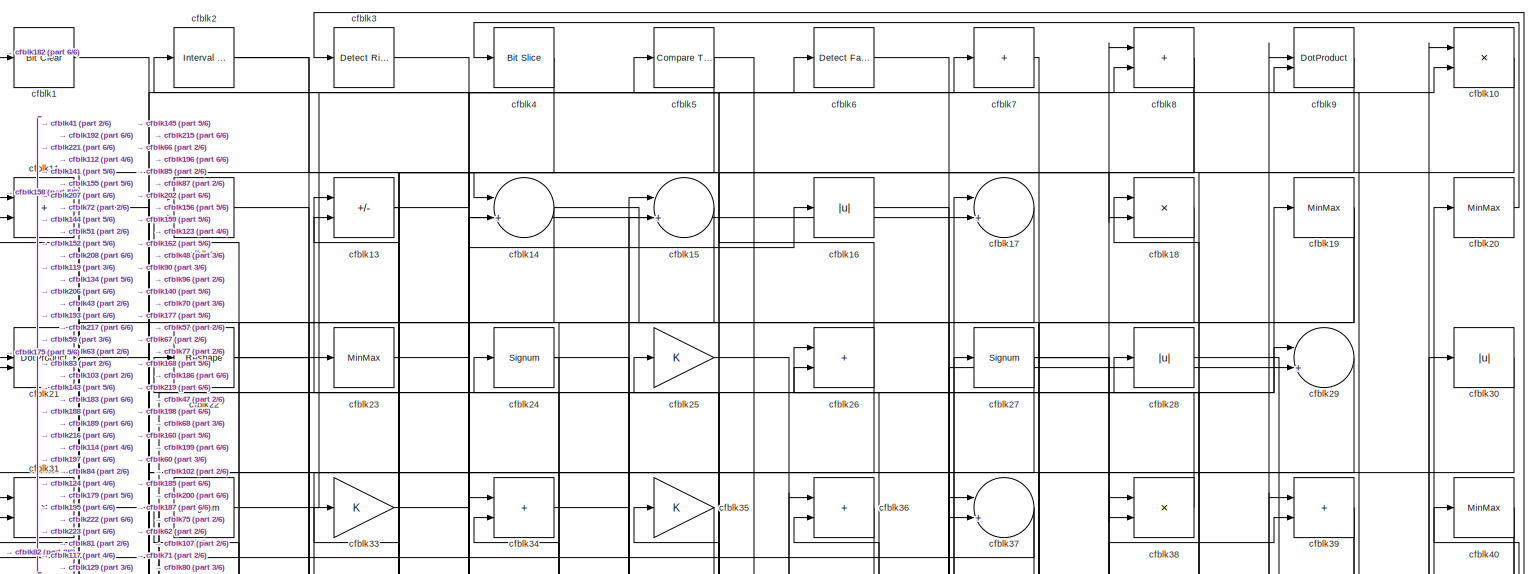
[diagram: root canvas - part 1/6, full width, top band]
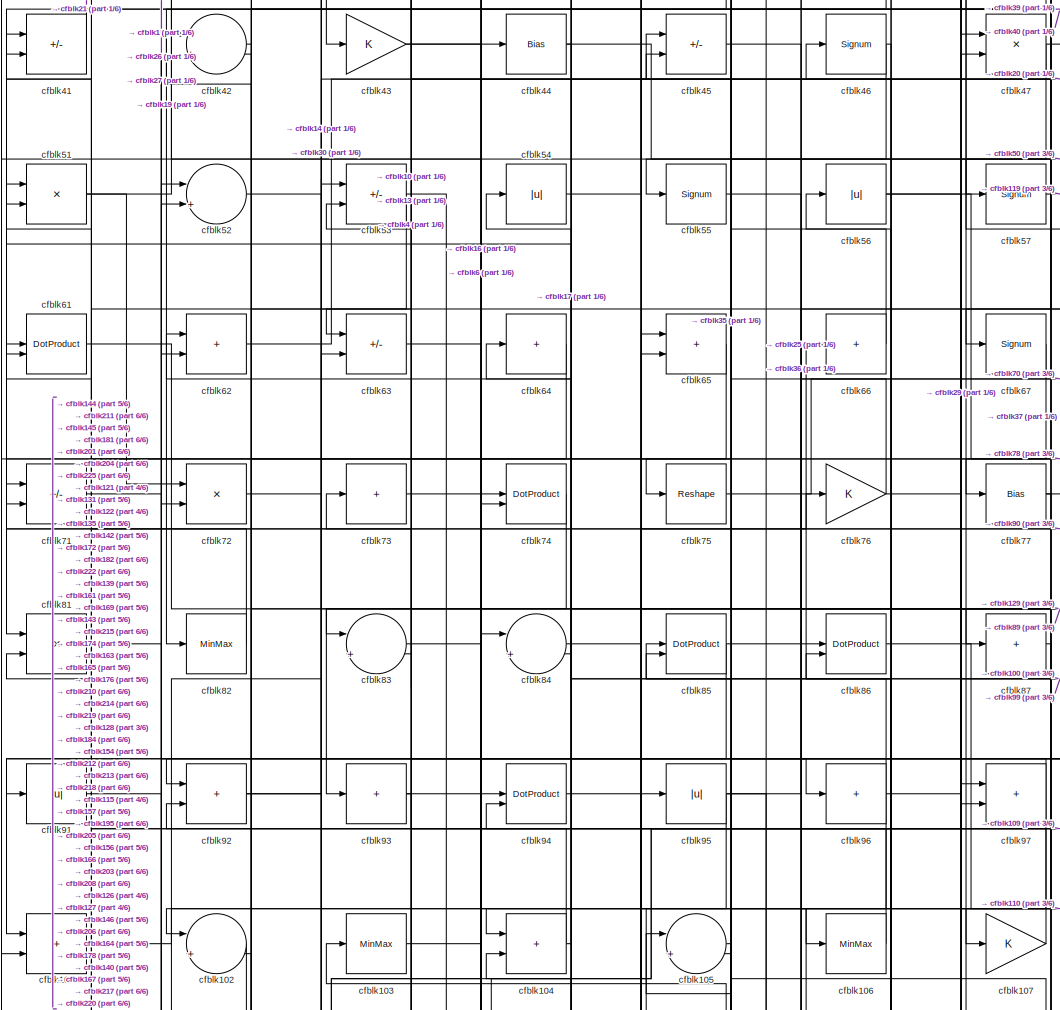
[diagram: root canvas - part 2/6, top center region]
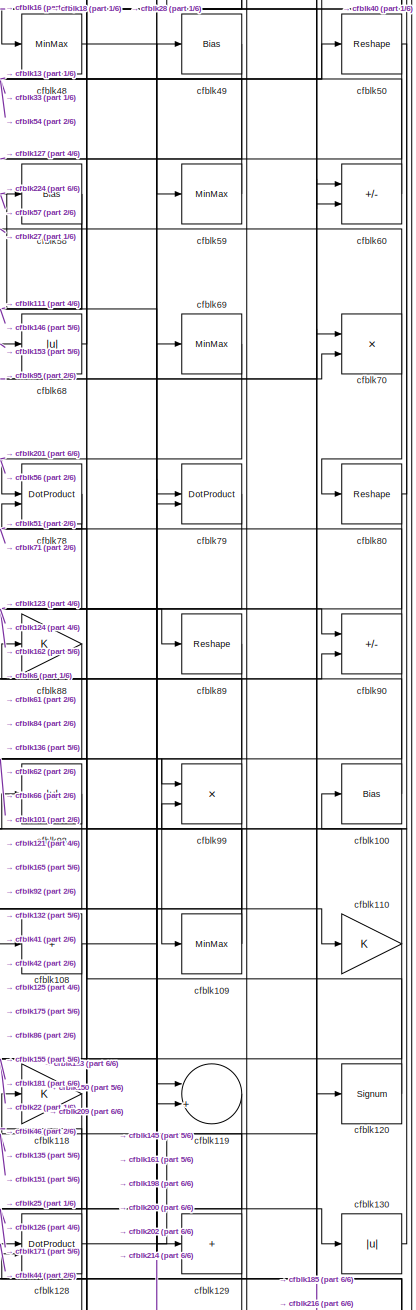
[diagram: root canvas - part 3/6, middle right region]
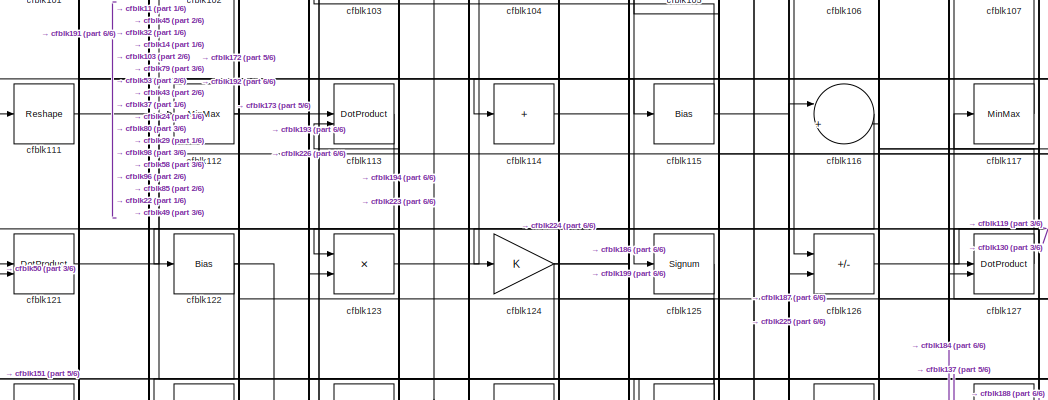
[diagram: root canvas - part 4/6, central region]
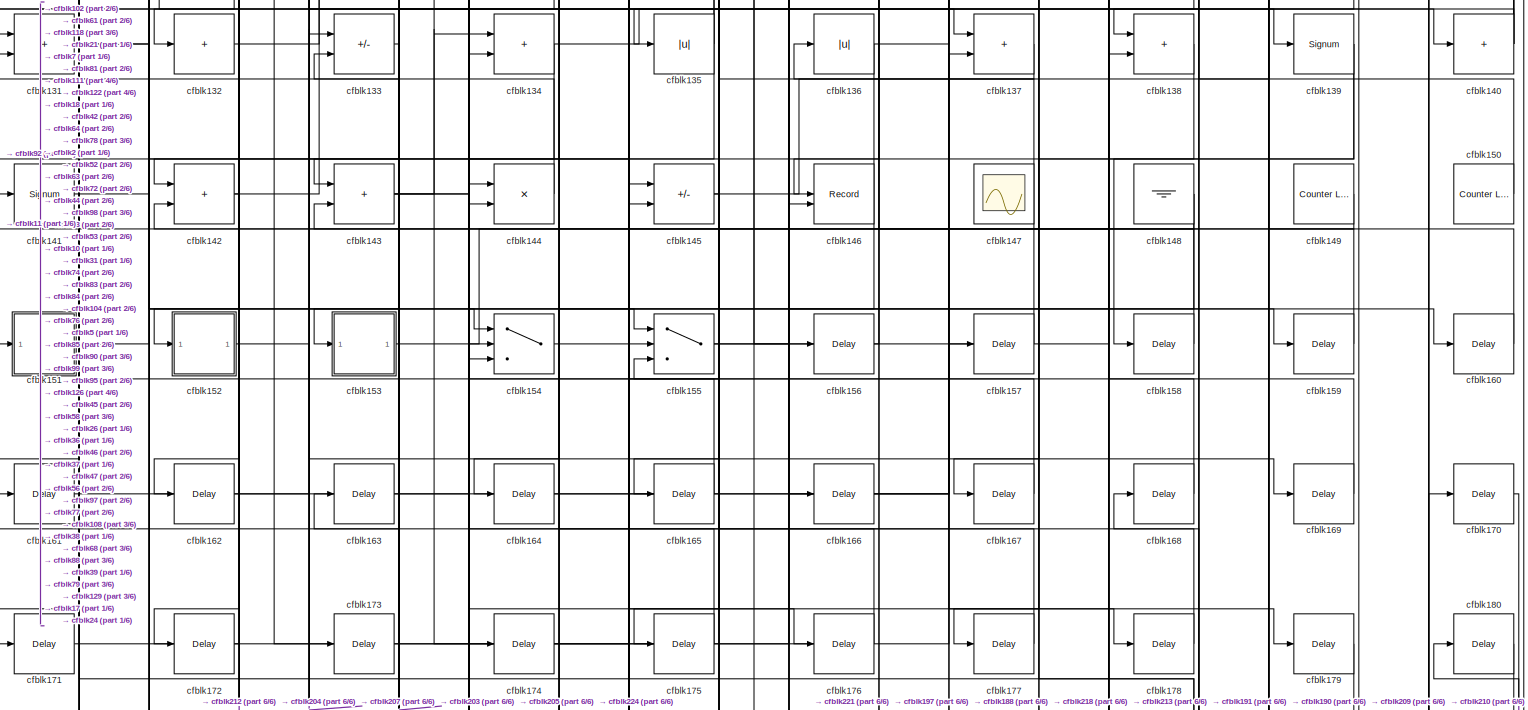
[diagram: root canvas - part 5/6, full width, bottom band]
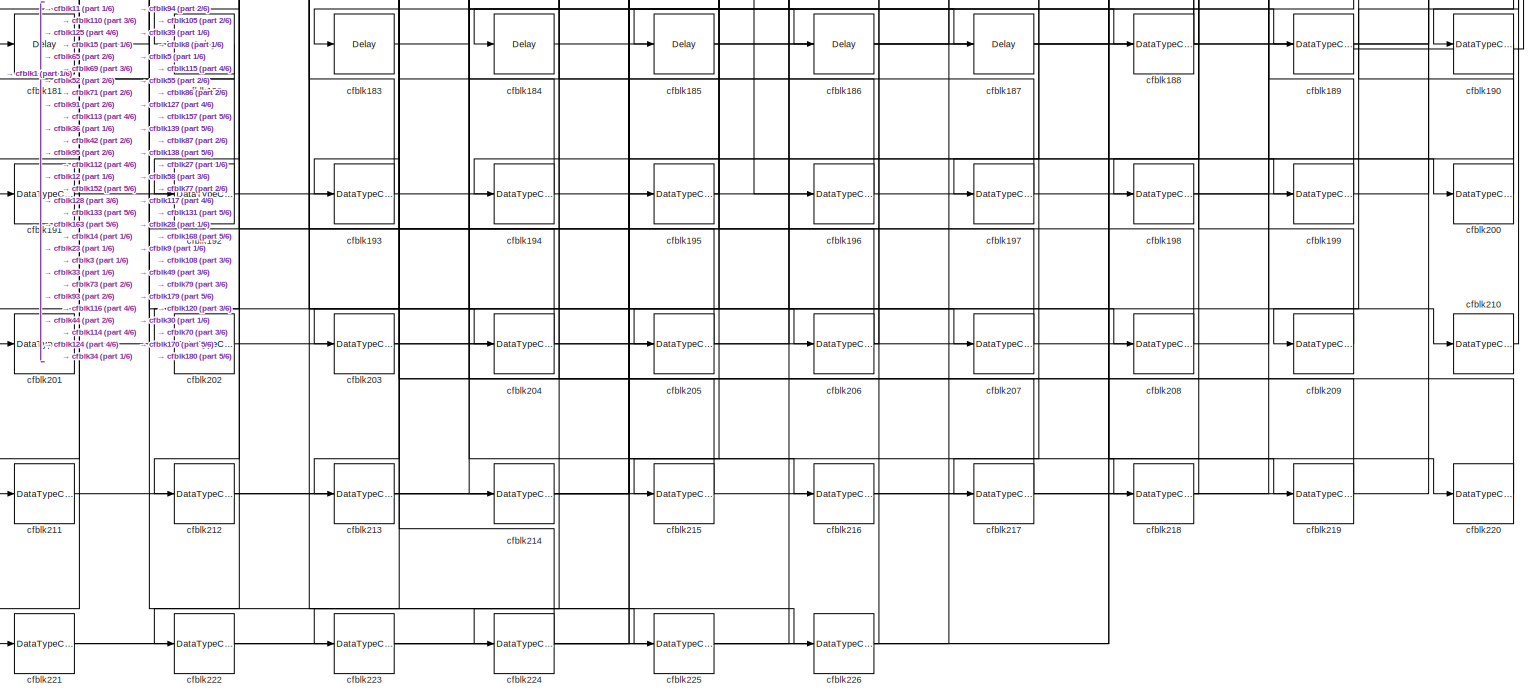
[diagram: root canvas - part 6/6, full width, bottom band]
MODEL slx_f7cb65cc12c7
KIND model
CONFIG AbsTol = auto
CONFIG EnableMultiTasking = off
CONFIG FixedStep = auto
CONFIG MaxStep = auto
CONFIG MinStep = auto
CONFIG RelTol = 1e-3
CONFIG SampleTimeConstraint = Unconstrained
CONFIG SolverName = VariableStepAuto
CONFIG StartTime = 0.0
CONFIG StopTime = 10.0
BLOCK [Reference] cfblk1  REF=simulink/Logic and Bit
Operations/Bit Clear
  LibrarySourceBlock = hdlsllib/Logic and Bit\nOperations/Bit Clear
  SourceBlock = simulink/Logic and Bit\nOperations/Bit Clear
  SourceType = Bit Clear
BLOCK [Product] cfblk10
  Inputs = */
  RndMeth = Zero
  SaturateOnIntegerOverflow = on
BLOCK [Bias] cfblk100
  Bias = 0.0
  SaturateOnIntegerOverflow = off
BLOCK [Sum] cfblk101
  IconShape = rectangular
BLOCK [Sum] cfblk102
  Inputs = |++
BLOCK [MinMax] cfblk103
BLOCK [Sum] cfblk104
  IconShape = rectangular
BLOCK [Sum] cfblk105
  Inputs = |++
BLOCK [MinMax] cfblk106
BLOCK [Gain] cfblk107
BLOCK [Sum] cfblk108
  IconShape = rectangular
  Inputs = +
BLOCK [MinMax] cfblk109
BLOCK [Sum] cfblk11
  IconShape = rectangular
BLOCK [Gain] cfblk110
BLOCK [Reshape] cfblk111
BLOCK [MinMax] cfblk112
BLOCK [DotProduct] cfblk113
  OutDataTypeStr = Inherit: Inherit via internal rule
BLOCK [Sum] cfblk114
  IconShape = rectangular
  Inputs = +
BLOCK [Bias] cfblk115
  Bias = 0.0
  SaturateOnIntegerOverflow = off
BLOCK [Sum] cfblk116
  Inputs = |++
BLOCK [MinMax] cfblk117
BLOCK [Gain] cfblk118
BLOCK [Sum] cfblk119
  Inputs = |++
BLOCK [Sum] cfblk12
  IconShape = rectangular
BLOCK [Signum] cfblk120
BLOCK [DotProduct] cfblk121
  OutDataTypeStr = Inherit: Inherit via internal rule
BLOCK [Bias] cfblk122
  Bias = 0.0
  SaturateOnIntegerOverflow = off
BLOCK [Product] cfblk123
  Inputs = */
  RndMeth = Zero
  SaturateOnIntegerOverflow = on
BLOCK [Gain] cfblk124
BLOCK [Signum] cfblk125
BLOCK [Sum] cfblk126
  IconShape = rectangular
  Inputs = +-
BLOCK [DotProduct] cfblk127
  OutDataTypeStr = Inherit: Inherit via internal rule
BLOCK [DotProduct] cfblk128
  OutDataTypeStr = Inherit: Inherit via internal rule
BLOCK [Sum] cfblk129
  IconShape = rectangular
  Inputs = +
BLOCK [Sum] cfblk13
  IconShape = rectangular
  Inputs = +-
BLOCK [Abs] cfblk130
  SaturateOnIntegerOverflow = off
BLOCK [Sum] cfblk131
  IconShape = rectangular
BLOCK [Sum] cfblk132
  IconShape = rectangular
  Inputs = +
BLOCK [Sum] cfblk133
  IconShape = rectangular
  Inputs = +-
BLOCK [Sum] cfblk134
  IconShape = rectangular
BLOCK [Abs] cfblk135
  SaturateOnIntegerOverflow = off
BLOCK [Abs] cfblk136
  SaturateOnIntegerOverflow = off
BLOCK [Sum] cfblk137
  IconShape = rectangular
BLOCK [Sum] cfblk138
  IconShape = rectangular
BLOCK [Signum] cfblk139
BLOCK [Sum] cfblk14
  Inputs = |++
BLOCK [Sum] cfblk140
  IconShape = rectangular
  Inputs = +
BLOCK [Signum] cfblk141
BLOCK [Sum] cfblk142
  IconShape = rectangular
BLOCK [Sum] cfblk143
  IconShape = rectangular
BLOCK [Product] cfblk144
  Inputs = */
  RndMeth = Zero
  SaturateOnIntegerOverflow = on
BLOCK [Sum] cfblk145
  IconShape = rectangular
  Inputs = +-
BLOCK [Record] cfblk146
  CompatibilityTag = XY
  FileSettingsInternal = {"entries":[{"content":{"excelSettings":{"content":{},"type":"Streamout.ExcelSettings"}},"type":"Streamout.FileSettingStorage","uuid":""}],"packageUris":["http:\/\/schema.mathworks.com\/mf0\/streamout_blocks\/R2020a"],"version":"1.0"}
  Layout = [1 1]
  SignalsInternal = {"entries":[{"content":{"signals":[{"content":{"blockPath":[],"dimensions":[1],"domain":"","lineColor":"#a2142f","plots":[1],"port":1,"signalID":2237,"signalName":"XY Graph:1"},"type":"RecordBlkView.Signal","uuid":""},{"content":{"blockPath":[],"dimensions":[1],"domain":"","lineColor":"#139fff","plots":[1],"port":2,"signalID":2240,"signalName":"XY Graph:2"},"type":"RecordBlkView.Signal","uuid":""}...<+146ch>
  VisualizationBindings = {"xyplotplugin":{"info":[{"series":[{"bindingParametersList":[{"parameter":"X-Axis","signalID":2237,"signalName":"XY Graph:1"},{"parameter":"Y-Axis","signalID":2240,"signalName":"XY Graph:2"}],"seriesID":42560}],"subplotID":1}]}}
  st = -1
BLOCK [Scope] cfblk147
  Floating = on
  NumInputPorts = 1
  ScopeSpecificationString = Simulink.scopes.TimeScopeBlockCfg('CurrentConfiguration', extmgr.ConfigurationSet(extmgr.Configuration('Core','General UI',true,'FigureColor',[0.156862745098039 0.156862745098039 0.156862745098039]),extmgr.Configuration('Core','Source UI',true),extmgr.Configuration('Sources','WiredSimulink',true,'DataLoggingVariableName','ScopeData1','DataLoggingSaveFormat','StructureWithTime','DataLoggingLimitDat...<+2713ch>
BLOCK [Ground] cfblk148
BLOCK [Reference] cfblk149  REF=hdlsllib/Sources/Counter
Limited
  SourceBlock = hdlsllib/Sources/Counter\nLimited
  SourceType = Counter Limited
BLOCK [Sum] cfblk15
  Inputs = |++
BLOCK [Reference] cfblk150  REF=hdlsllib/Sources/Counter
Limited
  SourceBlock = hdlsllib/Sources/Counter\nLimited
  SourceType = Counter Limited
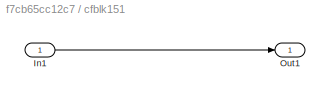
BLOCK [SubSystem] cfblk151
  LibrarySourceBlock = hdlsllib/Ports &\nSubsystems/Subsystem
BLOCK [Inport] cfblk151/In1
BLOCK [Outport] cfblk151/Out1
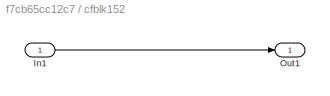
BLOCK [SubSystem] cfblk152
  LibrarySourceBlock = hdlsllib/Ports &\nSubsystems/Subsystem
BLOCK [Inport] cfblk152/In1
BLOCK [Outport] cfblk152/Out1
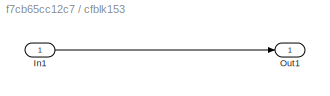
BLOCK [SubSystem] cfblk153
  LibrarySourceBlock = hdlsllib/Ports &\nSubsystems/Subsystem
BLOCK [Inport] cfblk153/In1
BLOCK [Outport] cfblk153/Out1
BLOCK [Switch] cfblk154
  InputSameDT = off
  SaturateOnIntegerOverflow = off
BLOCK [Switch] cfblk155
  InputSameDT = off
  SaturateOnIntegerOverflow = off
BLOCK [Delay] cfblk156
  InputPortMap = u0
  SampleTime = 1
BLOCK [Delay] cfblk157
  InputPortMap = u0
  SampleTime = 1
BLOCK [Delay] cfblk158
  InputPortMap = u0
  SampleTime = 1
BLOCK [Delay] cfblk159
  InputPortMap = u0
  SampleTime = 1
BLOCK [Abs] cfblk16
  SaturateOnIntegerOverflow = off
BLOCK [Delay] cfblk160
  InputPortMap = u0
  SampleTime = 1
BLOCK [Delay] cfblk161
  InputPortMap = u0
  SampleTime = 1
BLOCK [Delay] cfblk162
  InputPortMap = u0
  SampleTime = 1
BLOCK [Delay] cfblk163
  InputPortMap = u0
  SampleTime = 1
BLOCK [Delay] cfblk164
  InputPortMap = u0
  SampleTime = 1
BLOCK [Delay] cfblk165
  InputPortMap = u0
  SampleTime = 1
BLOCK [Delay] cfblk166
  InputPortMap = u0
  SampleTime = 1
BLOCK [Delay] cfblk167
  InputPortMap = u0
  SampleTime = 1
BLOCK [Delay] cfblk168
  InputPortMap = u0
  SampleTime = 1
BLOCK [Delay] cfblk169
  InputPortMap = u0
  SampleTime = 1
BLOCK [Sum] cfblk17
  Inputs = |++
BLOCK [Delay] cfblk170
  InputPortMap = u0
  SampleTime = 1
BLOCK [Delay] cfblk171
  InputPortMap = u0
  SampleTime = 1
BLOCK [Delay] cfblk172
  InputPortMap = u0
  SampleTime = 1
BLOCK [Delay] cfblk173
  InputPortMap = u0
  SampleTime = 1
BLOCK [Delay] cfblk174
  InputPortMap = u0
  SampleTime = 1
BLOCK [Delay] cfblk175
  InputPortMap = u0
  SampleTime = 1
BLOCK [Delay] cfblk176
  InputPortMap = u0
  SampleTime = 1
BLOCK [Delay] cfblk177
  InputPortMap = u0
  SampleTime = 1
BLOCK [Delay] cfblk178
  InputPortMap = u0
  SampleTime = 1
BLOCK [Delay] cfblk179
  InputPortMap = u0
  SampleTime = 1
BLOCK [Product] cfblk18
  Inputs = */
  RndMeth = Zero
  SaturateOnIntegerOverflow = on
BLOCK [Delay] cfblk180
  InputPortMap = u0
  SampleTime = 1
BLOCK [Delay] cfblk181
  InputPortMap = u0
  SampleTime = 1
BLOCK [Delay] cfblk182
  InputPortMap = u0
  SampleTime = 1
BLOCK [Delay] cfblk183
  InputPortMap = u0
  SampleTime = 1
BLOCK [Delay] cfblk184
  InputPortMap = u0
  SampleTime = 1
BLOCK [Delay] cfblk185
  InputPortMap = u0
  SampleTime = 1
BLOCK [Delay] cfblk186
  InputPortMap = u0
  SampleTime = 1
BLOCK [Delay] cfblk187
  InputPortMap = u0
  SampleTime = 1
BLOCK [DataTypeConversion] cfblk188
  RndMeth = Floor
  SaturateOnIntegerOverflow = off
BLOCK [DataTypeConversion] cfblk189
  OutDataTypeStr = uint8
  RndMeth = Floor
  SaturateOnIntegerOverflow = off
BLOCK [MinMax] cfblk19
BLOCK [DataTypeConversion] cfblk190
  OutDataTypeStr = uint8
  RndMeth = Floor
  SaturateOnIntegerOverflow = off
BLOCK [DataTypeConversion] cfblk191
  OutDataTypeStr = uint8
  RndMeth = Floor
  SaturateOnIntegerOverflow = off
BLOCK [DataTypeConversion] cfblk192
  OutDataTypeStr = uint8
  RndMeth = Floor
  SaturateOnIntegerOverflow = off
BLOCK [DataTypeConversion] cfblk193
  OutDataTypeStr = uint8
  RndMeth = Floor
  SaturateOnIntegerOverflow = off
BLOCK [DataTypeConversion] cfblk194
  OutDataTypeStr = uint8
  RndMeth = Floor
  SaturateOnIntegerOverflow = off
BLOCK [DataTypeConversion] cfblk195
  OutDataTypeStr = uint8
  RndMeth = Floor
  SaturateOnIntegerOverflow = off
BLOCK [DataTypeConversion] cfblk196
  OutDataTypeStr = uint8
  RndMeth = Floor
  SaturateOnIntegerOverflow = off
BLOCK [DataTypeConversion] cfblk197
  OutDataTypeStr = uint8
  RndMeth = Floor
  SaturateOnIntegerOverflow = off
BLOCK [DataTypeConversion] cfblk198
  OutDataTypeStr = uint8
  RndMeth = Floor
  SaturateOnIntegerOverflow = off
BLOCK [DataTypeConversion] cfblk199
  OutDataTypeStr = uint8
  RndMeth = Floor
  SaturateOnIntegerOverflow = off
BLOCK [Reference] cfblk2  REF=hdlsllib/Logic and Bit
Operations/Interval Test
  SourceBlock = hdlsllib/Logic and Bit\nOperations/Interval Test
  SourceType = Interval Test
BLOCK [MinMax] cfblk20
BLOCK [DataTypeConversion] cfblk200
  OutDataTypeStr = uint8
  RndMeth = Floor
  SaturateOnIntegerOverflow = off
BLOCK [DataTypeConversion] cfblk201
  OutDataTypeStr = uint8
  RndMeth = Floor
  SaturateOnIntegerOverflow = off
BLOCK [DataTypeConversion] cfblk202
  OutDataTypeStr = uint8
  RndMeth = Floor
  SaturateOnIntegerOverflow = off
BLOCK [DataTypeConversion] cfblk203
  OutDataTypeStr = uint8
  RndMeth = Floor
  SaturateOnIntegerOverflow = off
BLOCK [DataTypeConversion] cfblk204
  OutDataTypeStr = uint8
  RndMeth = Floor
  SaturateOnIntegerOverflow = off
BLOCK [DataTypeConversion] cfblk205
  OutDataTypeStr = uint8
  RndMeth = Floor
  SaturateOnIntegerOverflow = off
BLOCK [DataTypeConversion] cfblk206
  RndMeth = Floor
  SaturateOnIntegerOverflow = off
BLOCK [DataTypeConversion] cfblk207
  OutDataTypeStr = uint8
  RndMeth = Floor
  SaturateOnIntegerOverflow = off
BLOCK [DataTypeConversion] cfblk208
  OutDataTypeStr = uint8
  RndMeth = Floor
  SaturateOnIntegerOverflow = off
BLOCK [DataTypeConversion] cfblk209
  OutDataTypeStr = uint8
  RndMeth = Floor
  SaturateOnIntegerOverflow = off
BLOCK [DotProduct] cfblk21
  OutDataTypeStr = Inherit: Inherit via internal rule
BLOCK [DataTypeConversion] cfblk210
  OutDataTypeStr = uint8
  RndMeth = Floor
  SaturateOnIntegerOverflow = off
BLOCK [DataTypeConversion] cfblk211
  OutDataTypeStr = uint8
  RndMeth = Floor
  SaturateOnIntegerOverflow = off
BLOCK [DataTypeConversion] cfblk212
  OutDataTypeStr = uint8
  RndMeth = Floor
  SaturateOnIntegerOverflow = off
BLOCK [DataTypeConversion] cfblk213
  OutDataTypeStr = uint8
  RndMeth = Floor
  SaturateOnIntegerOverflow = off
BLOCK [DataTypeConversion] cfblk214
  OutDataTypeStr = uint8
  RndMeth = Floor
  SaturateOnIntegerOverflow = off
BLOCK [DataTypeConversion] cfblk215
  OutDataTypeStr = uint8
  RndMeth = Floor
  SaturateOnIntegerOverflow = off
BLOCK [DataTypeConversion] cfblk216
  OutDataTypeStr = uint8
  RndMeth = Floor
  SaturateOnIntegerOverflow = off
BLOCK [DataTypeConversion] cfblk217
  OutDataTypeStr = uint8
  RndMeth = Floor
  SaturateOnIntegerOverflow = off
BLOCK [DataTypeConversion] cfblk218
  OutDataTypeStr = uint8
  RndMeth = Floor
  SaturateOnIntegerOverflow = off
BLOCK [DataTypeConversion] cfblk219
  OutDataTypeStr = uint8
  RndMeth = Floor
  SaturateOnIntegerOverflow = off
BLOCK [Reshape] cfblk22
BLOCK [DataTypeConversion] cfblk220
  OutDataTypeStr = uint8
  RndMeth = Floor
  SaturateOnIntegerOverflow = off
BLOCK [DataTypeConversion] cfblk221
  RndMeth = Floor
  SaturateOnIntegerOverflow = off
BLOCK [DataTypeConversion] cfblk222
  OutDataTypeStr = uint8
  RndMeth = Floor
  SaturateOnIntegerOverflow = off
BLOCK [DataTypeConversion] cfblk223
  OutDataTypeStr = uint8
  RndMeth = Floor
  SaturateOnIntegerOverflow = off
BLOCK [DataTypeConversion] cfblk224
  RndMeth = Floor
  SaturateOnIntegerOverflow = off
BLOCK [DataTypeConversion] cfblk225
  OutDataTypeStr = uint8
  RndMeth = Floor
  SaturateOnIntegerOverflow = off
BLOCK [DataTypeConversion] cfblk226
  OutDataTypeStr = uint8
  RndMeth = Floor
  SaturateOnIntegerOverflow = off
BLOCK [MinMax] cfblk23
BLOCK [Signum] cfblk24
BLOCK [Gain] cfblk25
BLOCK [Sum] cfblk26
  IconShape = rectangular
BLOCK [Signum] cfblk27
BLOCK [Abs] cfblk28
  SaturateOnIntegerOverflow = off
BLOCK [Sum] cfblk29
  Inputs = |++
BLOCK [Reference] cfblk3  REF=hdlsllib/Logic and Bit
Operations/Detect Rise
Positive
  SourceBlock = hdlsllib/Logic and Bit\nOperations/Detect Rise\nPositive
  SourceType = Detect Rise Positive
BLOCK [Abs] cfblk30
  SaturateOnIntegerOverflow = off
BLOCK [Product] cfblk31
  Inputs = */
  RndMeth = Zero
  SaturateOnIntegerOverflow = on
BLOCK [Signum] cfblk32
BLOCK [Gain] cfblk33
BLOCK [Sum] cfblk34
  IconShape = rectangular
BLOCK [Gain] cfblk35
BLOCK [Sum] cfblk36
  IconShape = rectangular
BLOCK [Sum] cfblk37
  Inputs = |++
BLOCK [Product] cfblk38
  Inputs = */
  RndMeth = Zero
  SaturateOnIntegerOverflow = on
BLOCK [Sum] cfblk39
  IconShape = rectangular
BLOCK [Reference] cfblk4  REF=hdlsllib/Logic and Bit
Operations/Bit Slice
  SourceBlock = hdlsllib/Logic and Bit\nOperations/Bit Slice
  SourceType = Bit Slice
BLOCK [MinMax] cfblk40
BLOCK [Sum] cfblk41
  IconShape = rectangular
  Inputs = +-
BLOCK [Sum] cfblk42
  Inputs = |++
BLOCK [Gain] cfblk43
BLOCK [Bias] cfblk44
  Bias = 0.0
  SaturateOnIntegerOverflow = off
BLOCK [Sum] cfblk45
  IconShape = rectangular
  Inputs = +-
BLOCK [Signum] cfblk46
BLOCK [Product] cfblk47
  Inputs = */
  RndMeth = Zero
  SaturateOnIntegerOverflow = on
BLOCK [MinMax] cfblk48
BLOCK [Bias] cfblk49
  Bias = 0.0
  SaturateOnIntegerOverflow = off
BLOCK [Reference] cfblk5  REF=hdlsllib/Logic and Bit
Operations/Compare
To Constant
  SourceBlock = hdlsllib/Logic and Bit\nOperations/Compare\nTo Constant
  SourceType = Compare To Constant
BLOCK [Reshape] cfblk50
BLOCK [Product] cfblk51
  Inputs = */
  RndMeth = Zero
  SaturateOnIntegerOverflow = on
BLOCK [Sum] cfblk52
  Inputs = |++
BLOCK [Sum] cfblk53
  IconShape = rectangular
  Inputs = +-
BLOCK [Abs] cfblk54
  SaturateOnIntegerOverflow = off
BLOCK [Signum] cfblk55
BLOCK [Abs] cfblk56
  SaturateOnIntegerOverflow = off
BLOCK [Signum] cfblk57
BLOCK [Bias] cfblk58
  Bias = 0.0
  SaturateOnIntegerOverflow = off
BLOCK [MinMax] cfblk59
BLOCK [Reference] cfblk6  REF=hdlsllib/Logic and Bit
Operations/Detect Fall
Negative
  SourceBlock = hdlsllib/Logic and Bit\nOperations/Detect Fall\nNegative
  SourceType = Detect Fall Negative
BLOCK [Sum] cfblk60
  IconShape = rectangular
  Inputs = +-
BLOCK [DotProduct] cfblk61
  OutDataTypeStr = Inherit: Inherit via internal rule
BLOCK [Sum] cfblk62
  IconShape = rectangular
BLOCK [Sum] cfblk63
  IconShape = rectangular
  Inputs = +-
BLOCK [Sum] cfblk64
  IconShape = rectangular
  Inputs = +
BLOCK [Sum] cfblk65
  IconShape = rectangular
BLOCK [Sum] cfblk66
  IconShape = rectangular
  Inputs = +
BLOCK [Signum] cfblk67
BLOCK [Abs] cfblk68
  SaturateOnIntegerOverflow = off
BLOCK [MinMax] cfblk69
BLOCK [Sum] cfblk7
  IconShape = rectangular
  Inputs = +
BLOCK [Product] cfblk70
  Inputs = */
  RndMeth = Zero
  SaturateOnIntegerOverflow = on
BLOCK [Sum] cfblk71
  IconShape = rectangular
  Inputs = +-
BLOCK [Product] cfblk72
  Inputs = */
  RndMeth = Zero
  SaturateOnIntegerOverflow = on
BLOCK [Sum] cfblk73
  IconShape = rectangular
  Inputs = +
BLOCK [DotProduct] cfblk74
  OutDataTypeStr = Inherit: Inherit via internal rule
BLOCK [Reshape] cfblk75
BLOCK [Gain] cfblk76
BLOCK [Bias] cfblk77
  Bias = 0.0
  SaturateOnIntegerOverflow = off
BLOCK [DotProduct] cfblk78
  OutDataTypeStr = Inherit: Inherit via internal rule
BLOCK [DotProduct] cfblk79
  OutDataTypeStr = Inherit: Inherit via internal rule
BLOCK [Sum] cfblk8
  IconShape = rectangular
BLOCK [Reshape] cfblk80
BLOCK [Product] cfblk81
  Inputs = */
  RndMeth = Zero
  SaturateOnIntegerOverflow = on
BLOCK [MinMax] cfblk82
BLOCK [Sum] cfblk83
  Inputs = |++
BLOCK [Sum] cfblk84
  Inputs = |++
BLOCK [DotProduct] cfblk85
  OutDataTypeStr = Inherit: Inherit via internal rule
BLOCK [DotProduct] cfblk86
  OutDataTypeStr = Inherit: Inherit via internal rule
BLOCK [Sum] cfblk87
  IconShape = rectangular
  Inputs = +
BLOCK [Gain] cfblk88
BLOCK [Reshape] cfblk89
BLOCK [DotProduct] cfblk9
  OutDataTypeStr = Inherit: Inherit via internal rule
BLOCK [Sum] cfblk90
  IconShape = rectangular
  Inputs = +-
BLOCK [Abs] cfblk91
  SaturateOnIntegerOverflow = off
BLOCK [Sum] cfblk92
  IconShape = rectangular
BLOCK [Sum] cfblk93
  IconShape = rectangular
  Inputs = +
BLOCK [DotProduct] cfblk94
  OutDataTypeStr = Inherit: Inherit via internal rule
BLOCK [Abs] cfblk95
  SaturateOnIntegerOverflow = off
BLOCK [Sum] cfblk96
  IconShape = rectangular
  Inputs = +
BLOCK [Sum] cfblk97
  IconShape = rectangular
BLOCK [Abs] cfblk98
  SaturateOnIntegerOverflow = off
BLOCK [Product] cfblk99
  Inputs = */
  RndMeth = Zero
  SaturateOnIntegerOverflow = on
LINE cfblk100:1 -> cfblk66:1
LINE cfblk101:1 -> cfblk106:1
LINE cfblk102:1 -> cfblk131:1
LINE cfblk103:1 -> cfblk6:1
NET cfblk104:1 -> cfblk41:2, cfblk54:1
LINE cfblk105:1 -> cfblk205:1
LINE cfblk106:1 -> cfblk64:1
LINE cfblk107:1 -> cfblk53:2
NET cfblk108:1 -> cfblk161:1, cfblk200:1
NET cfblk109:1 -> cfblk41:1, cfblk99:2
LINE cfblk10:1 -> cfblk83:1
NET cfblk110:1 -> cfblk181:1, cfblk42:1
LINE cfblk111:1 -> cfblk137:1
NET cfblk112:1 -> cfblk226:1, cfblk32:1
LINE cfblk113:1 -> cfblk192:1
LINE cfblk114:1 -> cfblk199:1
NET cfblk115:1 -> cfblk103:1, cfblk187:1
LINE cfblk116:1 -> cfblk224:1
LINE cfblk117:1 -> cfblk22:1
LINE cfblk118:1 -> cfblk171:1
LINE cfblk119:1 -> cfblk121:1
LINE cfblk11:1 -> cfblk112:1
LINE cfblk120:1 -> cfblk78:2
LINE cfblk121:1 -> cfblk45:1
NET cfblk122:1 -> cfblk151:1, cfblk172:1, cfblk173:1
LINE cfblk123:1 -> cfblk37:1
NET cfblk124:1 -> cfblk186:1, cfblk223:1, cfblk29:1
LINE cfblk125:1 -> cfblk191:1
LINE cfblk126:1 -> cfblk130:1
LINE cfblk127:1 -> cfblk85:1
NET cfblk128:1 -> cfblk183:1, cfblk46:1, cfblk60:1
NET cfblk129:1 -> cfblk135:1, cfblk25:1
LINE cfblk12:1 -> cfblk206:1
LINE cfblk130:1 -> cfblk100:1
NET cfblk131:1 -> cfblk154:1, cfblk159:1
LINE cfblk132:1 -> cfblk98:1
LINE cfblk133:1 -> cfblk203:1
NET cfblk134:1 -> cfblk140:1, cfblk144:2
NET cfblk135:1 -> cfblk132:1, cfblk141:1, cfblk92:2
NET cfblk136:1 -> cfblk164:1, cfblk90:2
LINE cfblk137:1 -> cfblk136:1
LINE cfblk138:1 -> cfblk158:1
NET cfblk139:1 -> cfblk197:1, cfblk212:1
NET cfblk13:1 -> cfblk18:2, cfblk63:1
NET cfblk140:1 -> cfblk138:1, cfblk17:1, cfblk24:1, cfblk56:1
LINE cfblk141:1 -> cfblk7:1
NET cfblk142:1 -> cfblk42:2, cfblk44:1
NET cfblk143:1 -> cfblk10:2, cfblk134:1, cfblk17:2
LINE cfblk144:1 -> cfblk61:2
NET cfblk145:1 -> cfblk5:1, cfblk79:2
NET cfblk148:1 -> cfblk143:2, cfblk154:3
LINE cfblk149:1 -> cfblk142:2
NET cfblk14:1 -> cfblk123:2, cfblk47:1
LINE cfblk150:1 -> cfblk88:1
LINE cfblk151/In1:1 -> cfblk151/Out1:1
LINE cfblk151:1 -> cfblk118:1
LINE cfblk152/In1:1 -> cfblk152/Out1:1
LINE cfblk152:1 -> cfblk207:1
LINE cfblk153/In1:1 -> cfblk153/Out1:1
LINE cfblk153:1 -> cfblk68:1
LINE cfblk154:1 -> cfblk76:1
NET cfblk155:1 -> cfblk108:1, cfblk160:1
LINE cfblk156:1 -> cfblk36:2
LINE cfblk157:1 -> cfblk85:2
LINE cfblk158:1 -> cfblk11:1
LINE cfblk159:1 -> cfblk26:2
LINE cfblk15:1 -> cfblk221:1
LINE cfblk160:1 -> cfblk39:1
LINE cfblk161:1 -> cfblk63:2
LINE cfblk162:1 -> cfblk37:2
LINE cfblk163:1 -> cfblk84:1
LINE cfblk164:1 -> cfblk97:1
LINE cfblk165:1 -> cfblk74:1
LINE cfblk166:1 -> cfblk137:2
LINE cfblk167:1 -> cfblk81:2
LINE cfblk168:1 -> cfblk38:1
LINE cfblk169:1 -> cfblk155:2
LINE cfblk16:1 -> cfblk48:1
LINE cfblk170:1 -> cfblk190:1
LINE cfblk171:1 -> cfblk145:1
LINE cfblk172:1 -> cfblk102:2
LINE cfblk173:1 -> cfblk126:2
LINE cfblk174:1 -> cfblk47:2
LINE cfblk175:1 -> cfblk21:1
LINE cfblk176:1 -> cfblk104:2
LINE cfblk177:1 -> cfblk155:3
LINE cfblk178:1 -> cfblk154:2
LINE cfblk179:1 -> cfblk213:1
LINE cfblk17:1 -> cfblk84:2
LINE cfblk180:1 -> cfblk209:1
LINE cfblk181:1 -> cfblk52:2
LINE cfblk182:1 -> cfblk1:1
LINE cfblk183:1 -> cfblk14:2
LINE cfblk184:1 -> cfblk127:2
LINE cfblk185:1 -> cfblk70:1
LINE cfblk186:1 -> cfblk8:1
LINE cfblk187:1 -> cfblk30:1
NET cfblk188:1 -> cfblk117:1, cfblk131:2, cfblk28:1
LINE cfblk189:1 -> cfblk3:1
LINE cfblk18:1 -> cfblk152:1
LINE cfblk190:1 -> cfblk194:1
LINE cfblk191:1 -> cfblk170:1
LINE cfblk192:1 -> cfblk11:2
LINE cfblk193:1 -> cfblk113:1
LINE cfblk194:1 -> cfblk113:2
LINE cfblk195:1 -> cfblk105:1
LINE cfblk196:1 -> cfblk34:1
LINE cfblk197:1 -> cfblk34:2
LINE cfblk198:1 -> cfblk79:1
LINE cfblk199:1 -> cfblk9:1
NET cfblk19:1 -> cfblk57:1, cfblk77:1
LINE cfblk1:1 -> cfblk96:1
LINE cfblk200:1 -> cfblk9:2
LINE cfblk201:1 -> cfblk52:1
LINE cfblk202:1 -> cfblk69:1
LINE cfblk203:1 -> cfblk86:1
LINE cfblk204:1 -> cfblk133:1
LINE cfblk205:1 -> cfblk133:2
NET cfblk206:1 -> cfblk105:2, cfblk86:2
LINE cfblk207:1 -> cfblk12:1
LINE cfblk208:1 -> cfblk12:2
LINE cfblk209:1 -> cfblk128:2
LINE cfblk20:1 -> cfblk4:1
LINE cfblk210:1 -> cfblk180:1
LINE cfblk211:1 -> cfblk95:1
LINE cfblk212:1 -> cfblk65:1
LINE cfblk213:1 -> cfblk65:2
LINE cfblk214:1 -> cfblk49:1
LINE cfblk215:1 -> cfblk73:1
LINE cfblk216:1 -> cfblk120:1
LINE cfblk217:1 -> cfblk23:1
LINE cfblk218:1 -> cfblk168:1
LINE cfblk219:1 -> cfblk94:1
LINE cfblk21:1 -> cfblk155:1
LINE cfblk220:1 -> cfblk94:2
NET cfblk221:1 -> cfblk138:2, cfblk157:1
LINE cfblk222:1 -> cfblk15:1
LINE cfblk223:1 -> cfblk15:2
NET cfblk224:1 -> cfblk163:1, cfblk58:1
LINE cfblk225:1 -> cfblk116:1
LINE cfblk226:1 -> cfblk116:2
NET cfblk22:1 -> cfblk119:2, cfblk13:1
LINE cfblk23:1 -> cfblk216:1
NET cfblk24:1 -> cfblk114:1, cfblk179:1
LINE cfblk25:1 -> cfblk87:1
NET cfblk26:1 -> cfblk2:1, cfblk62:2
NET cfblk27:1 -> cfblk219:1, cfblk38:2, cfblk72:2
LINE cfblk28:1 -> cfblk60:2
LINE cfblk29:1 -> cfblk67:1
NET cfblk2:1 -> cfblk134:2, cfblk14:1
LINE cfblk30:1 -> cfblk43:1
LINE cfblk31:1 -> cfblk144:1
LINE cfblk32:1 -> cfblk8:2
LINE cfblk33:1 -> cfblk189:1
LINE cfblk34:1 -> cfblk195:1
LINE cfblk35:1 -> cfblk81:1
LINE cfblk36:1 -> cfblk202:1
NET cfblk37:1 -> cfblk31:2, cfblk82:1
LINE cfblk38:1 -> cfblk26:1
NET cfblk39:1 -> cfblk102:1, cfblk185:1
LINE cfblk3:1 -> cfblk188:1
NET cfblk40:1 -> cfblk107:1, cfblk71:1
LINE cfblk41:1 -> cfblk21:2
LINE cfblk42:1 -> cfblk182:1
NET cfblk43:1 -> cfblk115:1, cfblk16:1
NET cfblk44:1 -> cfblk128:1, cfblk184:1
LINE cfblk45:1 -> cfblk166:1
NET cfblk46:1 -> cfblk146:1, cfblk55:1
NET cfblk47:1 -> cfblk39:2, cfblk75:1
LINE cfblk48:1 -> cfblk59:1
LINE cfblk49:1 -> cfblk127:1
LINE cfblk4:1 -> cfblk83:2
NET cfblk50:1 -> cfblk101:1, cfblk121:2
NET cfblk51:1 -> cfblk19:1, cfblk72:1
LINE cfblk52:1 -> cfblk139:1
NET cfblk53:1 -> cfblk122:1, cfblk174:1
LINE cfblk54:1 -> cfblk50:1
LINE cfblk55:1 -> cfblk208:1
NET cfblk56:1 -> cfblk178:1, cfblk78:1
LINE cfblk57:1 -> cfblk119:1
NET cfblk58:1 -> cfblk111:1, cfblk146:2
LINE cfblk59:1 -> cfblk33:1
NET cfblk5:1 -> cfblk193:1, cfblk196:1
LINE cfblk60:1 -> cfblk13:2
LINE cfblk61:1 -> cfblk129:1
LINE cfblk62:1 -> cfblk20:1
LINE cfblk63:1 -> cfblk74:2
LINE cfblk64:1 -> cfblk142:1
LINE cfblk65:1 -> cfblk211:1
LINE cfblk66:1 -> cfblk35:1
LINE cfblk67:1 -> cfblk101:2
LINE cfblk68:1 -> cfblk18:1
LINE cfblk69:1 -> cfblk201:1
LINE cfblk6:1 -> cfblk90:1
NET cfblk70:1 -> cfblk27:1, cfblk80:1
LINE cfblk71:1 -> cfblk225:1
LINE cfblk72:1 -> cfblk169:1
LINE cfblk73:1 -> cfblk214:1
LINE cfblk74:1 -> cfblk93:1
LINE cfblk75:1 -> cfblk10:1
NET cfblk76:1 -> cfblk45:2, cfblk97:2
NET cfblk77:1 -> cfblk167:1, cfblk220:1
NET cfblk78:1 -> cfblk162:1, cfblk71:2
LINE cfblk79:1 -> cfblk123:1
LINE cfblk7:1 -> cfblk177:1
NET cfblk80:1 -> cfblk124:1, cfblk40:1
LINE cfblk81:1 -> cfblk145:2
LINE cfblk82:1 -> cfblk61:1
LINE cfblk83:1 -> cfblk176:1
LINE cfblk84:1 -> cfblk89:1
NET cfblk85:1 -> cfblk36:1, cfblk91:1
LINE cfblk86:1 -> cfblk110:1
LINE cfblk87:1 -> cfblk217:1
LINE cfblk88:1 -> cfblk153:1
LINE cfblk89:1 -> cfblk109:1
NET cfblk8:1 -> cfblk215:1, cfblk31:1
NET cfblk90:1 -> cfblk165:1, cfblk51:2
LINE cfblk91:1 -> cfblk204:1
NET cfblk92:1 -> cfblk53:1, cfblk99:1
NET cfblk93:1 -> cfblk143:1, cfblk210:1
LINE cfblk94:1 -> cfblk218:1
NET cfblk95:1 -> cfblk156:1, cfblk222:1, cfblk70:2
NET cfblk96:1 -> cfblk126:1, cfblk29:2, cfblk51:1
NET cfblk97:1 -> cfblk104:1, cfblk92:1
LINE cfblk98:1 -> cfblk125:1
NET cfblk99:1 -> cfblk175:1, cfblk62:1
LINE cfblk9:1 -> cfblk198:1
note: NET lines group one-source signal fan-out (src -> all destinations, sorted); 1:1 wires keep LINE
